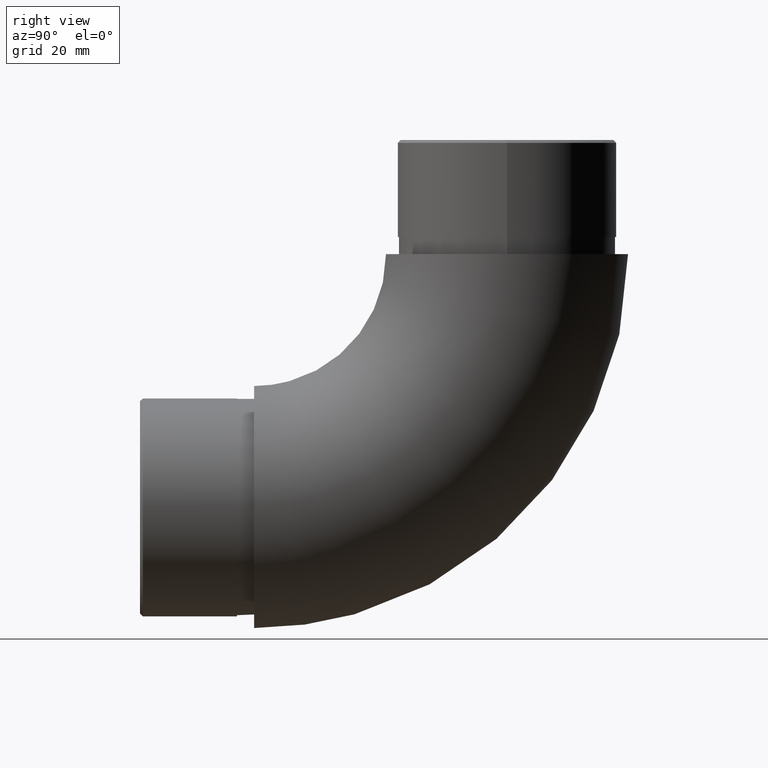
[diagram: clean part render]
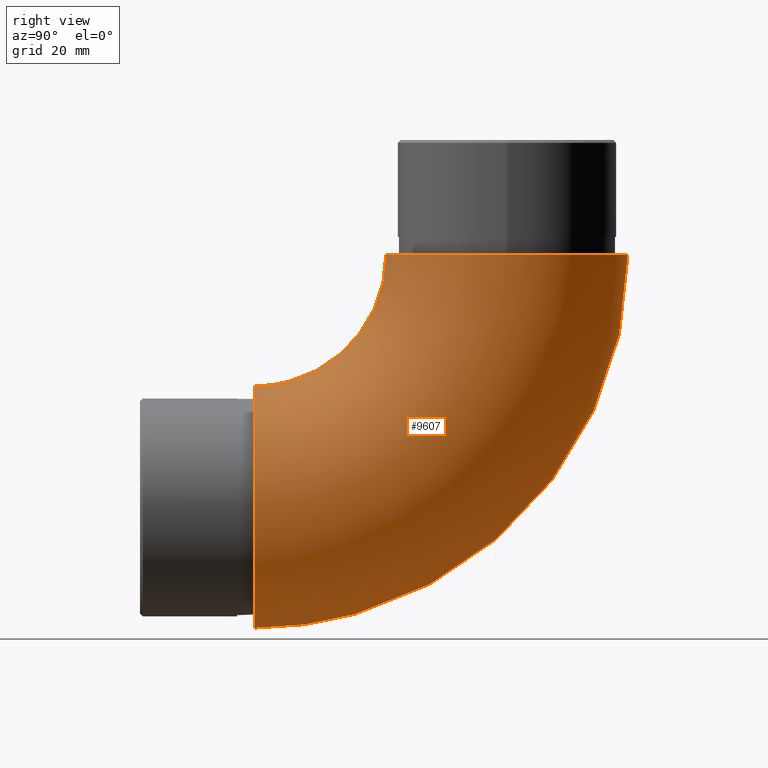
[diagram: same view with one face highlighted and labeled with its STEP entity id]
A machine part, right view. The second image highlights one B-rep face of the part: STEP entity #9607.
In plain terms, the highlighted toroidal blend (fillet) surface has major radius 44.3 mm and minor (blend) radius 21.2 mm.
Its self-contained STEP definition (entity closure, byte-faithful):
#308 = VERTEX_POINT ( 'NONE', #1163 ) ;
#630 = FACE_OUTER_BOUND ( 'NONE', #11687, .T. ) ;
#869 = EDGE_CURVE ( 'NONE', #11484, #11484, #7866, .T. ) ;
#1163 = CARTESIAN_POINT ( 'NONE',  ( 0.0000000000000000000, 0.0000000000000000000, 42.39999999999999900 ) ) ;
#1261 = AXIS2_PLACEMENT_3D ( 'NONE', #3175, #10608, #4147 ) ;
#2241 = FACE_OUTER_BOUND ( 'NONE', #2541, .T. ) ;
#2541 = EDGE_LOOP ( 'NONE', ( #5331 ) ) ;
#3175 = CARTESIAN_POINT ( 'NONE',  ( 0.0000000000000000000, 0.0000000000000000000, 21.19999999999999900 ) ) ;
#3688 = AXIS2_PLACEMENT_3D ( 'NONE', #10515, #4896, #5873 ) ;
#3966 = TOROIDAL_SURFACE ( 'NONE', #4975, 44.29999999999999700, 21.19999999999999900 ) ;
#4040 = CARTESIAN_POINT ( 'NONE',  ( 0.0000000000000000000, -6.938893903907228400E-015, 65.50000000000000000 ) ) ;
#4147 = DIRECTION ( 'NONE',  ( 0.0000000000000000000, 0.0000000000000000000, 1.000000000000000000 ) ) ;
#4223 = CIRCLE ( 'NONE', #1261, 21.19999999999999900 ) ;
#4896 = DIRECTION ( 'NONE',  ( 0.0000000000000000000, 6.123233995736766000E-017, 1.000000000000000000 ) ) ;
#4975 = AXIS2_PLACEMENT_3D ( 'NONE', #4040, #7647, #9513 ) ;
#5331 = ORIENTED_EDGE ( 'NONE', *, *, #869, .F. ) ;
#5873 = DIRECTION ( 'NONE',  ( 0.0000000000000000000, -1.000000000000000000, 0.0000000000000000000 ) ) ;
#7647 = DIRECTION ( 'NONE',  ( -1.000000000000000000, -0.0000000000000000000, -0.0000000000000000000 ) ) ;
#7866 = CIRCLE ( 'NONE', #3688, 21.19999999999999900 ) ;
#8584 = ORIENTED_EDGE ( 'NONE', *, *, #8936, .T. ) ;
#8936 = EDGE_CURVE ( 'NONE', #308, #308, #4223, .T. ) ;
#9513 = DIRECTION ( 'NONE',  ( 0.0000000000000000000, 0.0000000000000000000, 1.000000000000000000 ) ) ;
#9607 = ADVANCED_FACE ( 'NONE', ( #2241, #630 ), #3966, .T. ) ;
#10284 = CARTESIAN_POINT ( 'NONE',  ( 0.0000000000000000000, 23.09999999999999100, 65.50000000000000000 ) ) ;
#10515 = CARTESIAN_POINT ( 'NONE',  ( 0.0000000000000000000, 44.29999999999999000, 65.50000000000000000 ) ) ;
#10608 = DIRECTION ( 'NONE',  ( 0.0000000000000000000, 1.000000000000000000, 0.0000000000000000000 ) ) ;
#11484 = VERTEX_POINT ( 'NONE', #10284 ) ;
#11687 = EDGE_LOOP ( 'NONE', ( #8584 ) ) ;